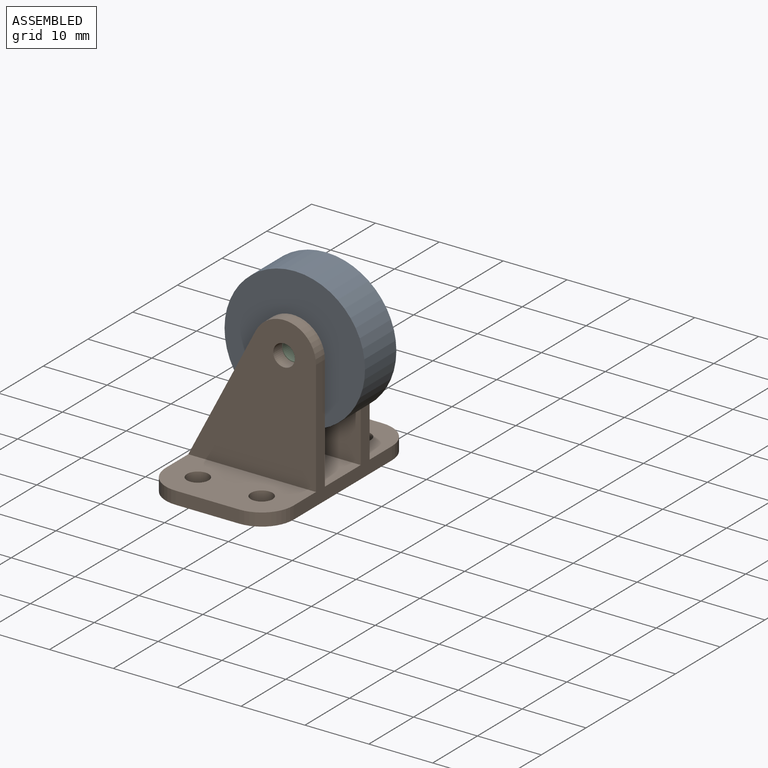
[diagram: assembled view]
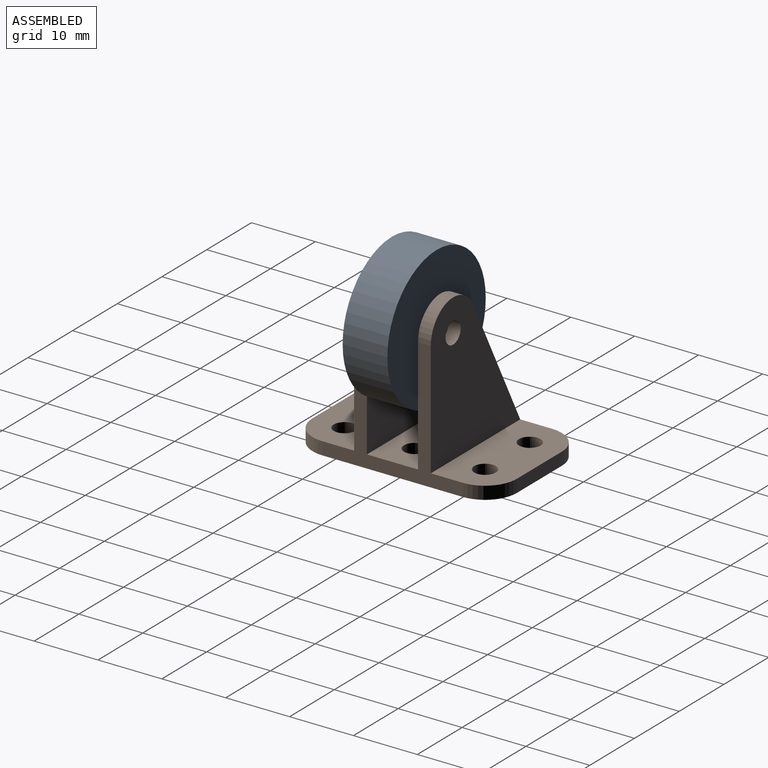
[diagram: assembled view, second angle]
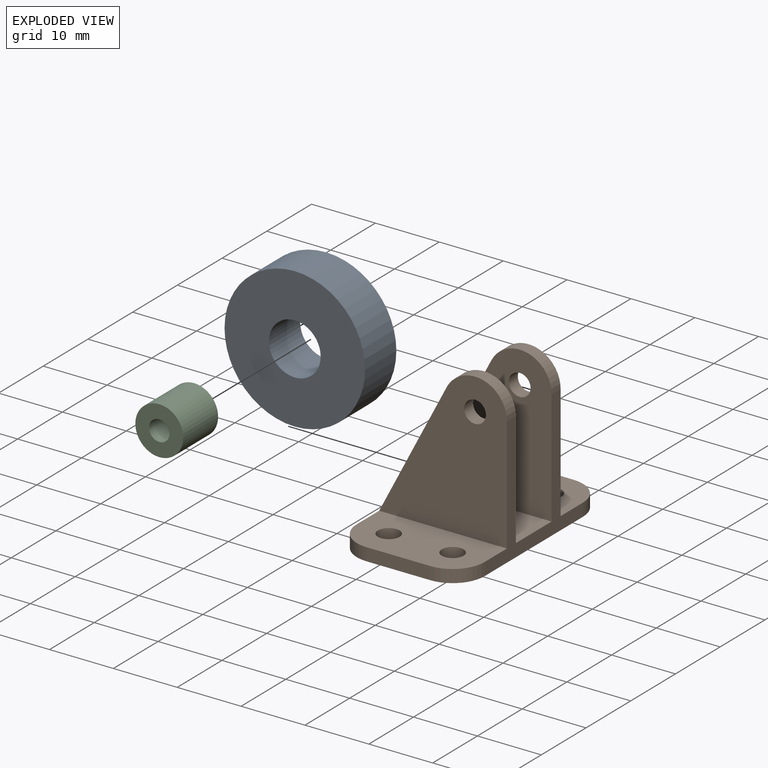
[diagram: exploded view]
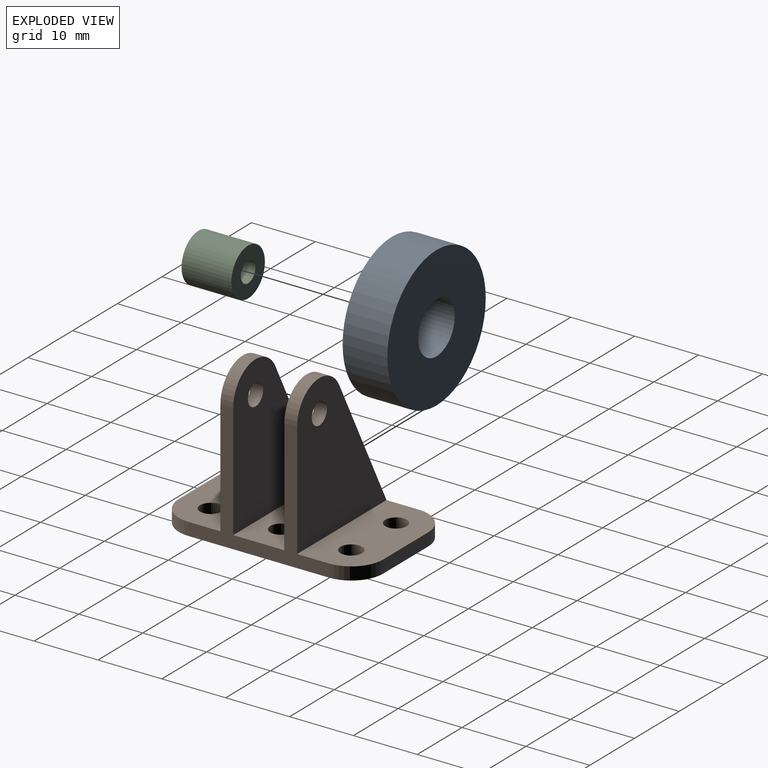
[diagram: exploded view, second angle]
ASSEMBLY  parts=3 mates=2
PART A: 4 faces, bbox 22x22x7 mm
  f0: cylinder r=4.05mm len=8.1mm, axis (0,0,-1), area 178.1mm2, adj f2,f3
  f1: cylinder r=11mm len=22mm, axis (0,0,-1), area 483.8mm2, adj f2,f3
  f2: plane 22x22mm, normal (0,0,1), area 328.6mm2, adj f0,f1
  f3: plane 22x22mm, normal (0,0,-1), area 328.6mm2, adj f0,f1
PART B: 28 faces, bbox 20x32x25 mm
  f0: plane 20x8mm, normal (0,0,1), area 141.8mm2, adj f2,f4,f8,f11,f20,f21
  f1: plane 23x20mm, normal (0,-1,0), area 306.4mm2, adj f2,f6,f7,f13,f23
  f2: plane 22x20mm, normal (1,0,0), area 116mm2, adj f0,f1,f3,f5,f6,f8,f10,f11
  f3: plane 23x20mm, normal (0,1,0), area 306.4mm2, adj f2,f9,f10,f15,f22
  f4: plane 22x2mm, normal (-1,0,0), area 44mm2, adj f0,f5,f7,f9,f13,f15,f24,f27
  f5: plane 32x20mm, normal (0,0,-1), area 564.1mm2, adj f2,f4,f12,f14,f16,f17,f18,f19
  f6: cylinder r=5mm len=9.44mm, axis (0,-1,0), area 26.6mm2, adj f1,f2,f7,f8
  f7: plane 20.31x10.56mm, normal (-0.89,0,0.46), area 45.8mm2, adj f1,f4,f6,f8
  f8: plane 23x20mm, normal (0,1,0), area 306.4mm2, adj f0,f2,f6,f7,f23
  f9: plane 20.31x10.56mm, normal (-0.89,0,0.46), area 45.8mm2, adj f3,f4,f10,f11
  f10: cylinder r=5mm len=9.44mm, axis (0,1,0), area 26.6mm2, adj f2,f3,f9,f11
  f11: plane 23x20mm, normal (0,-1,0), area 306.4mm2, adj f0,f2,f9,f10,f22
  f12: plane 10x2mm, normal (0,-1,0), area 20mm2, adj f5,f13,f24,f25
  f13: plane 20x10mm, normal (0,0,1), area 171.1mm2, adj f1,f2,f4,f12,f18,f19,f24,f25
  f14: plane 10x2mm, normal (0,1,0), area 20mm2, adj f5,f15,f26,f27
  f15: plane 20x10mm, normal (0,0,1), area 171.1mm2, adj f2,f3,f4,f14,f16,f17,f26,f27
  f16: cylinder r=1.7mm len=3.4mm, axis (0,0,1), area 21.4mm2, adj f5,f15
  f17: cylinder r=1.7mm len=3.4mm, axis (0,0,1), area 21.4mm2, adj f5,f15
  f18: cylinder r=1.7mm len=3.4mm, axis (0,0,1), area 21.4mm2, adj f5,f13
  f19: cylinder r=1.7mm len=3.4mm, axis (0,0,1), area 21.4mm2, adj f5,f13
  f20: cylinder r=1.7mm len=3.4mm, axis (0,0,1), area 21.4mm2, adj f0,f5
  f21: cylinder r=1.7mm len=3.4mm, axis (0,0,1), area 21.4mm2, adj f0,f5
  f22: cylinder r=1.7mm len=3.4mm, axis (0,-1,0), area 21.4mm2, adj f3,f11
  f23: cylinder r=1.7mm len=3.4mm, axis (0,-1,0), area 21.4mm2, adj f1,f8
  f24: cylinder r=5mm len=5mm, axis (0,0,-1), area 15.7mm2, adj f4,f5,f12,f13
  f25: cylinder r=5mm len=5mm, axis (0,0,1), area 15.7mm2, adj f2,f5,f12,f13
  f26: cylinder r=5mm len=5mm, axis (0,0,-1), area 15.7mm2, adj f2,f5,f14,f15
  f27: cylinder r=5mm len=5mm, axis (0,0,1), area 15.7mm2, adj f4,f5,f14,f15
PART C: 4 faces, bbox 7.5x7.5x7.8 mm
  f0: cylinder r=3.75mm len=7.8mm, axis (0,0,-1), area 183.8mm2, adj f1,f2
  f1: plane 7.5x7.5mm, normal (0,0,1), area 36.1mm2, adj f0,f3
  f2: plane 7.5x7.5mm, normal (0,0,-1), area 36.1mm2, adj f0,f3
  f3: cylinder r=1.6mm len=7.8mm, axis (0,0,1), area 78.4mm2, adj f1,f2
PLACE A rot(axis=(-1,0,0),90deg) t=(-11.01,-13.71,6.14)mm
PLACE B t=(-6.01,-16.11,-13.86)mm
PLACE C rot(axis=(1,0,0),90deg) t=(-11.01,-6.31,6.14)mm
MATE fastened A.f1 <-> C.f0  axis (0,-1,0) through (-11.01,-10.21,6.14)mm
MATE fastened C.f3 <-> B.f6  axis (0,-1,0) through (-11.01,-14.11,6.14)mm
